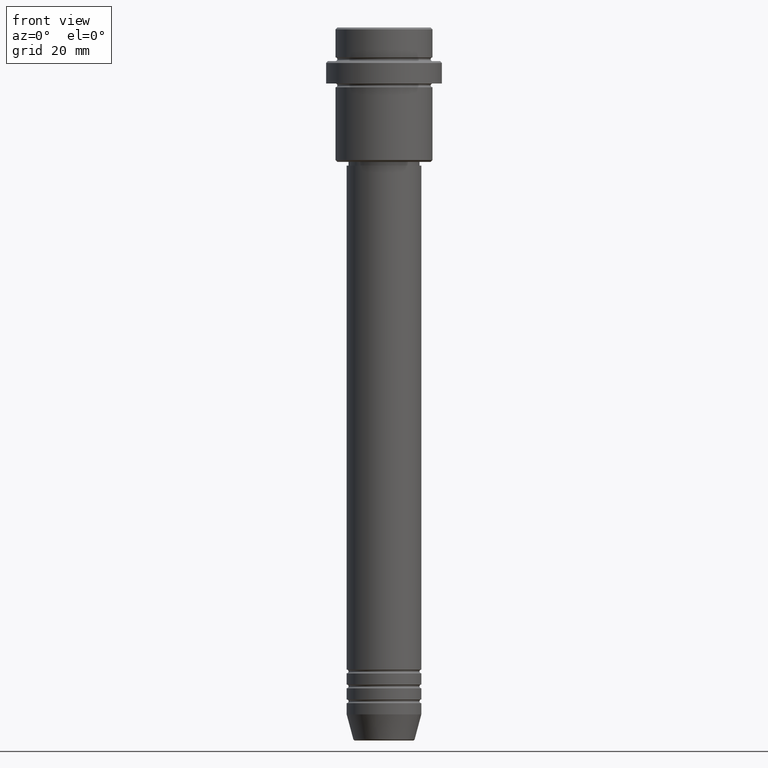
[diagram: clean part render]
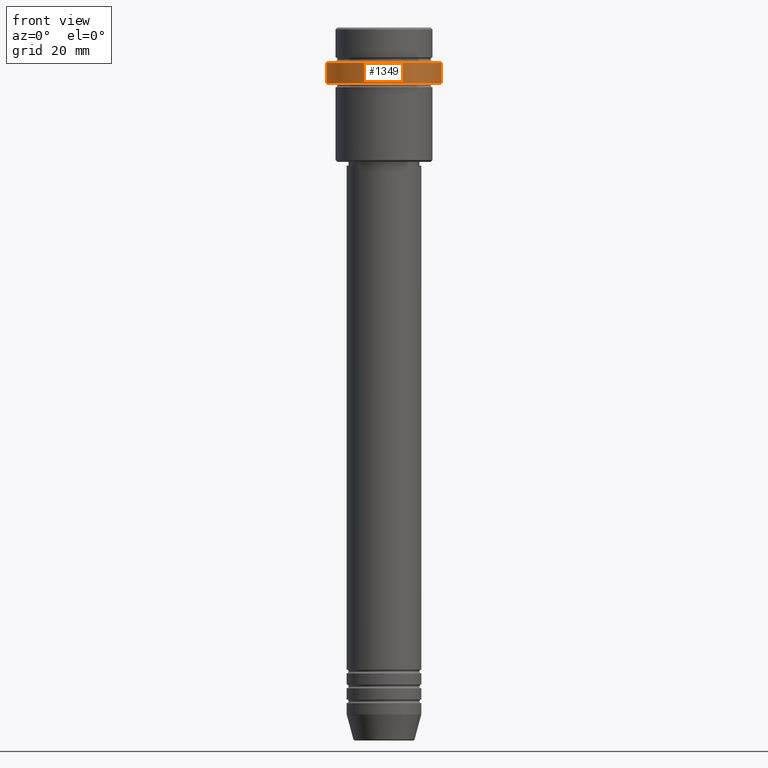
[diagram: same view with one face highlighted and labeled with its STEP entity id]
A machine part, front view. The second image highlights one B-rep face of the part: STEP entity #1349.
In plain terms, the highlighted cylindrical surface (partial cylindrical patch) has radius 15.5 mm, axis along (-0, -0, 1).
Its self-contained STEP definition (entity closure, byte-faithful):
#27 = ORIENTED_EDGE ( 'NONE', *, *, #901, .F. ) ;
#48 = CIRCLE ( 'NONE', #1310, 15.50000000000000000 ) ;
#64 = CARTESIAN_POINT ( 'NONE',  ( -15.50000000000000000, 1.898202538678397557E-15, -9.500000000000040856 ) ) ;
#86 = VECTOR ( 'NONE', #1352, 1000.000000000000000 ) ;
#87 = CIRCLE ( 'NONE', #292, 15.50000000000000000 ) ;
#136 = VERTEX_POINT ( 'NONE', #64 ) ;
#165 = EDGE_CURVE ( 'NONE', #1213, #136, #48, .T. ) ;
#263 = LINE ( 'NONE', #374, #386 ) ;
#278 = LINE ( 'NONE', #721, #86 ) ;
#282 = VERTEX_POINT ( 'NONE', #766 ) ;
#292 = AXIS2_PLACEMENT_3D ( 'NONE', #604, #597, #722 ) ;
#302 = CARTESIAN_POINT ( 'NONE',  ( 0.000000000000000000, 0.000000000000000000, -9.500000000000040856 ) ) ;
#374 = CARTESIAN_POINT ( 'NONE',  ( 15.50000000000000000, 0.000000000000000000, 0.000000000000000000 ) ) ;
#386 = VECTOR ( 'NONE', #707, 1000.000000000000000 ) ;
#401 = ORIENTED_EDGE ( 'NONE', *, *, #1200, .T. ) ;
#435 = ORIENTED_EDGE ( 'NONE', *, *, #1175, .T. ) ;
#521 = DIRECTION ( 'NONE',  ( 0.000000000000000000, 0.000000000000000000, -1.000000000000000000 ) ) ;
#597 = DIRECTION ( 'NONE',  ( -0.000000000000000000, -0.000000000000000000, 1.000000000000000000 ) ) ;
#604 = CARTESIAN_POINT ( 'NONE',  ( 0.000000000000000000, 0.000000000000000000, -15.00000000000000178 ) ) ;
#610 = CARTESIAN_POINT ( 'NONE',  ( 15.50000000000000000, 0.000000000000000000, -9.500000000000040856 ) ) ;
#635 = AXIS2_PLACEMENT_3D ( 'NONE', #1316, #1321, #984 ) ;
#707 = DIRECTION ( 'NONE',  ( -0.000000000000000000, -0.000000000000000000, 1.000000000000000000 ) ) ;
#721 = CARTESIAN_POINT ( 'NONE',  ( -15.50000000000000000, 1.898202538678397557E-15, 0.000000000000000000 ) ) ;
#722 = DIRECTION ( 'NONE',  ( 1.000000000000000000, 0.000000000000000000, 0.000000000000000000 ) ) ;
#766 = CARTESIAN_POINT ( 'NONE',  ( 15.50000000000000000, 0.000000000000000000, -15.00000000000000178 ) ) ;
#782 = VERTEX_POINT ( 'NONE', #798 ) ;
#798 = CARTESIAN_POINT ( 'NONE',  ( -15.50000000000000000, 1.898202538678397557E-15, -15.00000000000000178 ) ) ;
#882 = FACE_OUTER_BOUND ( 'NONE', #1313, .T. ) ;
#901 = EDGE_CURVE ( 'NONE', #782, #136, #278, .T. ) ;
#984 = DIRECTION ( 'NONE',  ( 1.000000000000000000, 0.000000000000000000, 0.000000000000000000 ) ) ;
#1075 = DIRECTION ( 'NONE',  ( 1.000000000000000000, 0.000000000000000000, 0.000000000000000000 ) ) ;
#1175 = EDGE_CURVE ( 'NONE', #282, #1213, #263, .T. ) ;
#1198 = ORIENTED_EDGE ( 'NONE', *, *, #165, .T. ) ;
#1200 = EDGE_CURVE ( 'NONE', #782, #282, #87, .T. ) ;
#1206 = CYLINDRICAL_SURFACE ( 'NONE', #635, 15.50000000000000000 ) ;
#1213 = VERTEX_POINT ( 'NONE', #610 ) ;
#1310 = AXIS2_PLACEMENT_3D ( 'NONE', #302, #521, #1075 ) ;
#1313 = EDGE_LOOP ( 'NONE', ( #27, #401, #435, #1198 ) ) ;
#1316 = CARTESIAN_POINT ( 'NONE',  ( 0.000000000000000000, 0.000000000000000000, 0.000000000000000000 ) ) ;
#1321 = DIRECTION ( 'NONE',  ( -0.000000000000000000, -0.000000000000000000, 1.000000000000000000 ) ) ;
#1349 = ADVANCED_FACE ( 'NONE', ( #882 ), #1206, .T. ) ;
#1352 = DIRECTION ( 'NONE',  ( -0.000000000000000000, -0.000000000000000000, 1.000000000000000000 ) ) ;